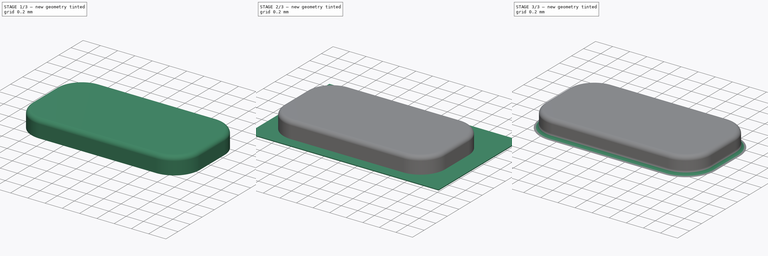
[diagram: build sequence overview — one tinted view per stage of 3, left to right]
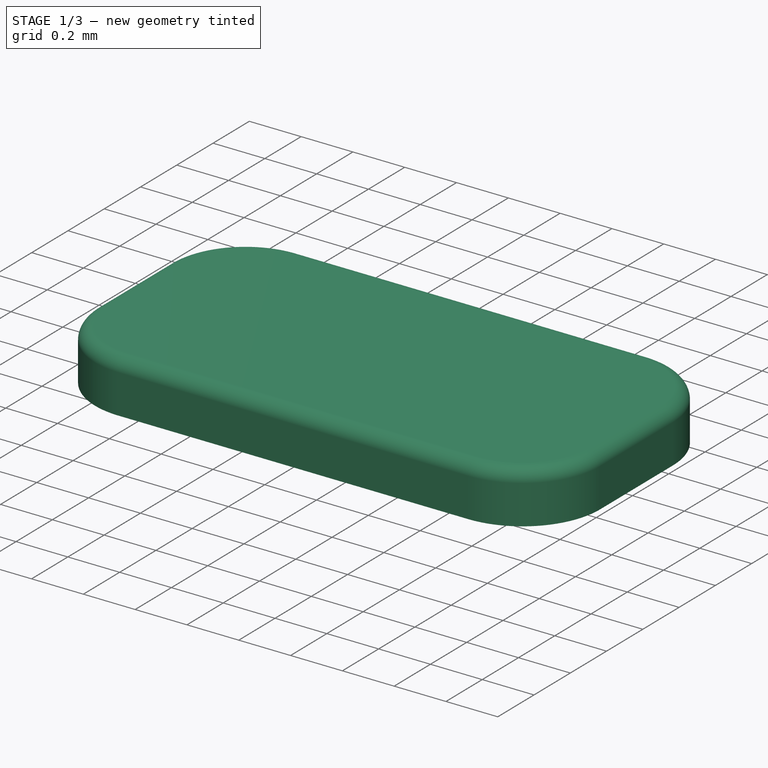
[diagram: stage 1 of 3 — iso view after this stage's code; geometry added in this stage tinted green]
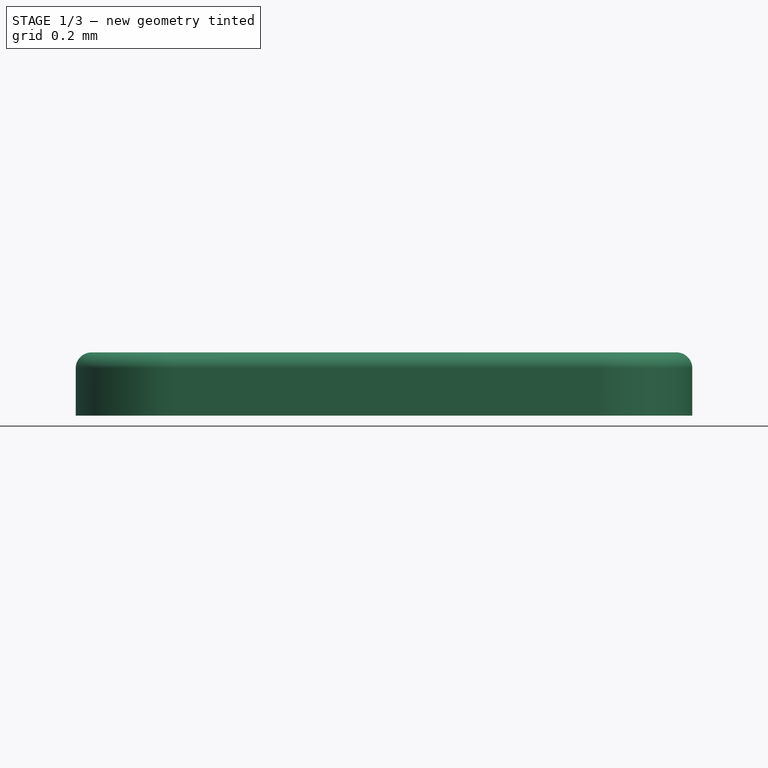
[diagram: stage 1 of 3 — front view after this stage's code; geometry added in this stage tinted green]
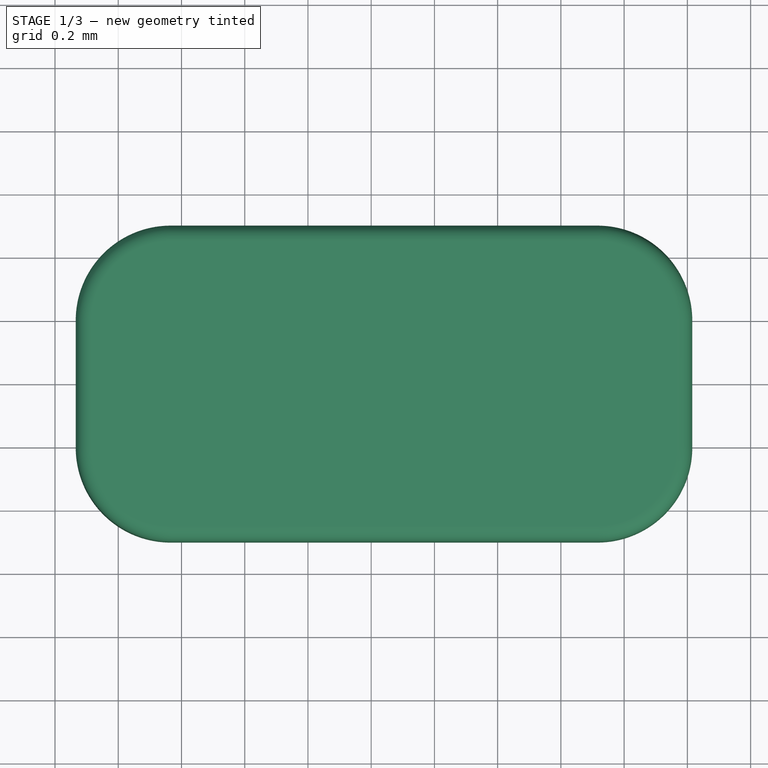
[diagram: stage 1 of 3 — top view after this stage's code; geometry added in this stage tinted green]
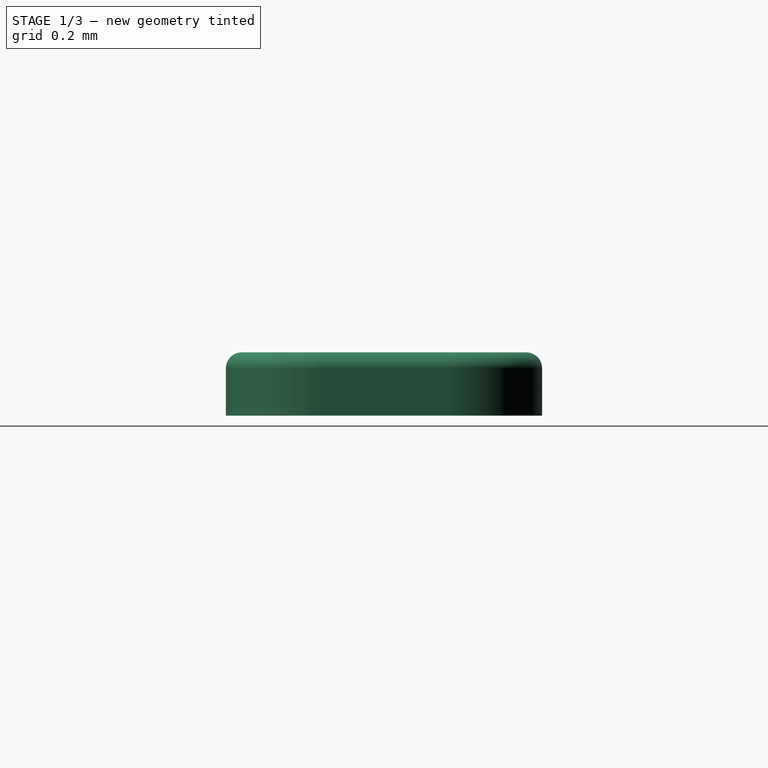
[diagram: stage 1 of 3 — right view after this stage's code; geometry added in this stage tinted green]
FCSTD DOCUMENT  (FreeCAD 0.17R12607 (Git))
Label: FC-12M Covercstd
License: CreativeCommons Attribution-ShareAlike
LicenseURL: http://creativecommons.org/licenses/by-sa/4.0/
objects: Sketcher::SketchObject×3, PartDesign::Pad×2, PartDesign::Fillet×2, PartDesign::Pocket×1, PartDesign::Body×1
note: 12 computed .brp shape members not serialized (recipe doc carries the construction recipe); baked Part::Feature solids carry a one-line shape summary decoded from their .brp

FEATURE [Sketcher::SketchObject] Sketch
  MapMode = 5
  Support = -> [XY_Plane]
  sketch-geometry (8):
    g0: ArcOfCircle CenterX=3.56552 CenterY=0.2 CenterZ=0 NormalX=0 NormalY=0 NormalZ=1 AngleXU=0 Radius=0.3 StartAngle=1.57079 EndAngle=3.14159
    g1: LineSegment StartX=3.56552 StartY=0.5 StartZ=0 EndX=4.91552 EndY=0.5 EndZ=0
    g2: ArcOfCircle CenterX=4.91552 CenterY=0.2 CenterZ=0 NormalX=0 NormalY=0 NormalZ=1 AngleXU=0 Radius=0.3 StartAngle=7.2494e-08 EndAngle=1.57081
    g3: LineSegment StartX=5.21552 StartY=0.2 StartZ=0 EndX=5.21552 EndY=-0.2 EndZ=0
    g4: ArcOfCircle CenterX=4.91552 CenterY=-0.2 CenterZ=0 NormalX=0 NormalY=0 NormalZ=1 AngleXU=0 Radius=0.3 StartAngle=4.71237 EndAngle=6.28319
    g5: LineSegment StartX=4.91552 StartY=-0.5 StartZ=0 EndX=3.56552 EndY=-0.5 EndZ=0
    g6: ArcOfCircle CenterX=3.56552 CenterY=-0.2 CenterZ=0 NormalX=0 NormalY=0 NormalZ=1 AngleXU=0 Radius=0.3 StartAngle=3.14159 EndAngle=4.71239
    g7: LineSegment StartX=3.26552 StartY=-0.2 StartZ=0 EndX=3.26552 EndY=0.2 EndZ=0
  constraints (27):
    c: Coincident(g1,g0)
    c: Horizontal(g1)
    c: Coincident(g2,g1)
    c: Coincident(g3,g2)
    c: Vertical(g3)
    c: Coincident(g4,g3)
    c: Coincident(g5,g4)
    c: Horizontal(g5)
    c: Coincident(g6,g5)
    c: Coincident(g7,g6)
    c: Coincident(g7,g0)
    c: Vertical(g7)
    c: Equal(g1,g5)
    c: Equal(g3,g7)
    c: Equal(g0,g2)
    c: Equal(g6,g4)
    c: Equal(g0,g6)
    c: Tangent(g0,g1)
    c: Tangent(g7,g0)
    c: Tangent(g1,g2)
    c: Tangent(g3,g2)
    c: Tangent(g3,g4)
    c: Tangent(g5,g6)
    c: Symmetric(g0,g5,g-1)
    c: Radius(g2) = 0.3
    c: Distance(g1,g4) = 1
    c: DistanceX(g1,g1) = 1.35
FEATURE [PartDesign::Pad] Pad
  Length = 0.2
  Length2 = 100
  Profile = -> Sketch
  Type = 0
FEATURE [PartDesign::Fillet] Fillet
  Base = -> Pad [Face10]
  BaseFeature = -> Pad
  Radius = 0.05
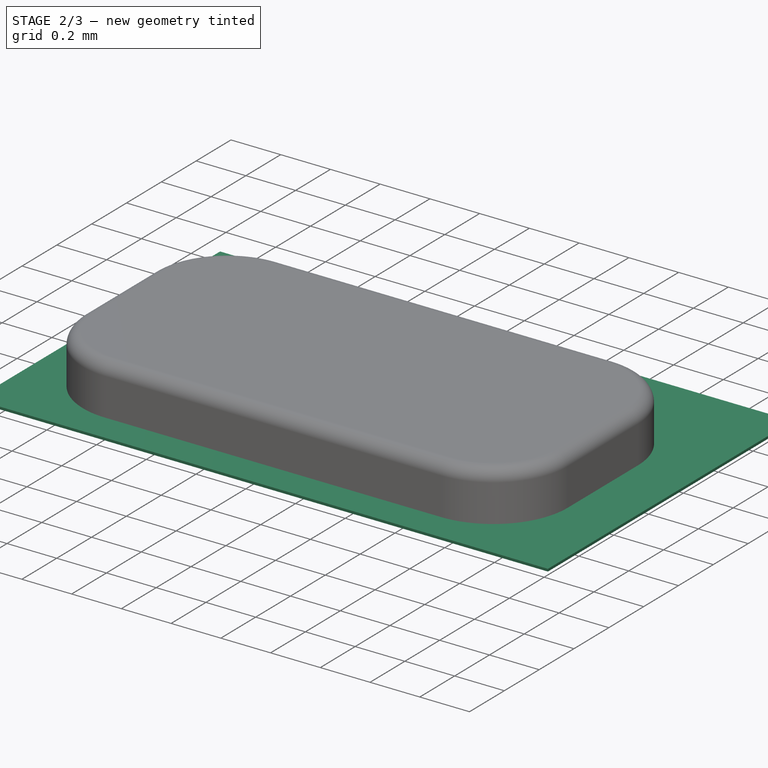
[diagram: stage 2 of 3 — iso view after this stage's code; geometry added in this stage tinted green]
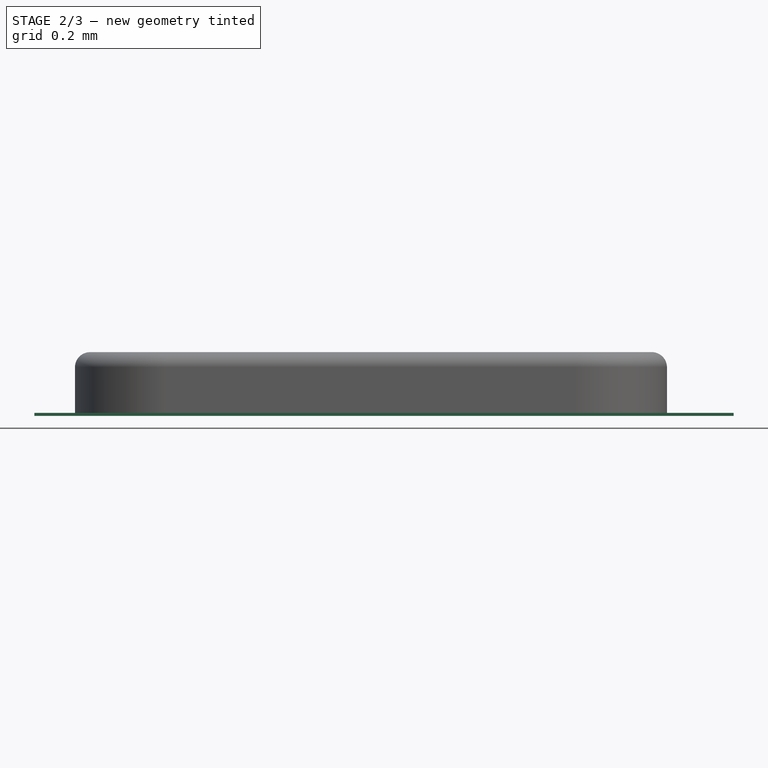
[diagram: stage 2 of 3 — front view after this stage's code; geometry added in this stage tinted green]
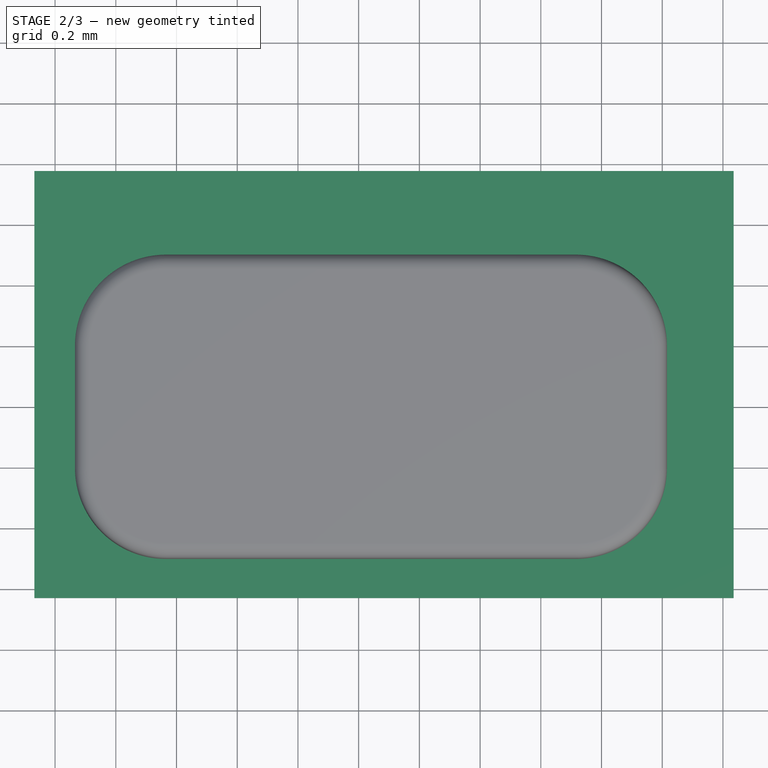
[diagram: stage 2 of 3 — top view after this stage's code; geometry added in this stage tinted green]
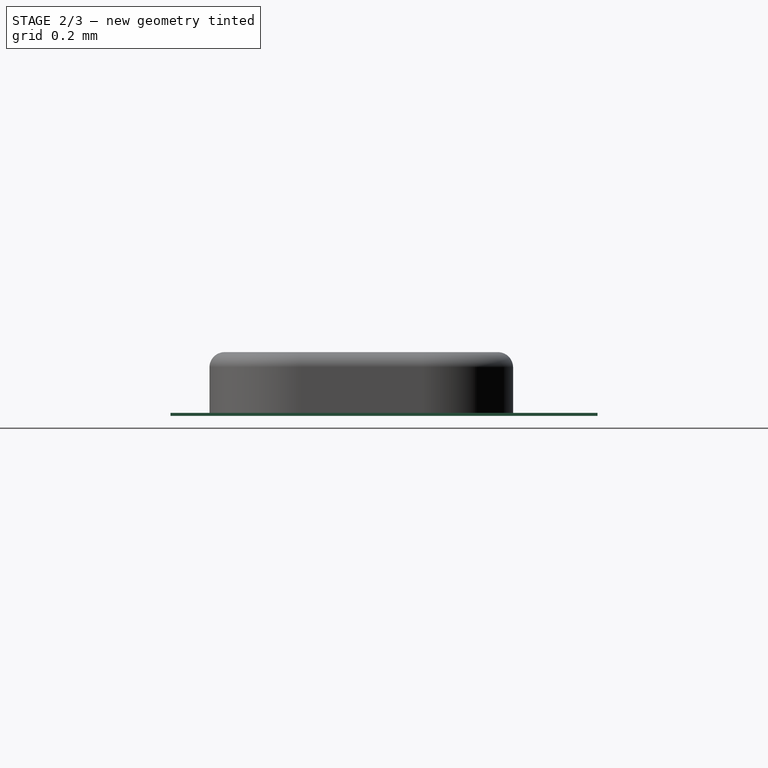
[diagram: stage 2 of 3 — right view after this stage's code; geometry added in this stage tinted green]
FEATURE [Sketcher::SketchObject] Sketch001
  MapMode = 5
  Placement = pos=(0,0,0) rot=(1,0,0;3.14159rad)
  Support = -> [Fillet]
  sketch-geometry (4):
    g0: LineSegment StartX=3.13171 StartY=0.628584 StartZ=0 EndX=5.43524 EndY=0.628584 EndZ=0
    g1: LineSegment StartX=5.43524 StartY=0.628584 StartZ=0 EndX=5.43524 EndY=-0.778291 EndZ=0
    g2: LineSegment StartX=5.43524 StartY=-0.778291 StartZ=0 EndX=3.13171 EndY=-0.778291 EndZ=0
    g3: LineSegment StartX=3.13171 StartY=-0.778291 StartZ=0 EndX=3.13171 EndY=0.628584 EndZ=0
  constraints (8):
    c: Coincident(g0,g1)
    c: Coincident(g1,g2)
    c: Coincident(g2,g3)
    c: Coincident(g3,g0)
    c: Horizontal(g0)
    c: Horizontal(g2)
    c: Vertical(g1)
    c: Vertical(g3)
FEATURE [PartDesign::Pad] Pad001
  BaseFeature = -> Fillet
  Length = 0.01
  Length2 = 100
  Profile = -> Sketch001
  Type = 0
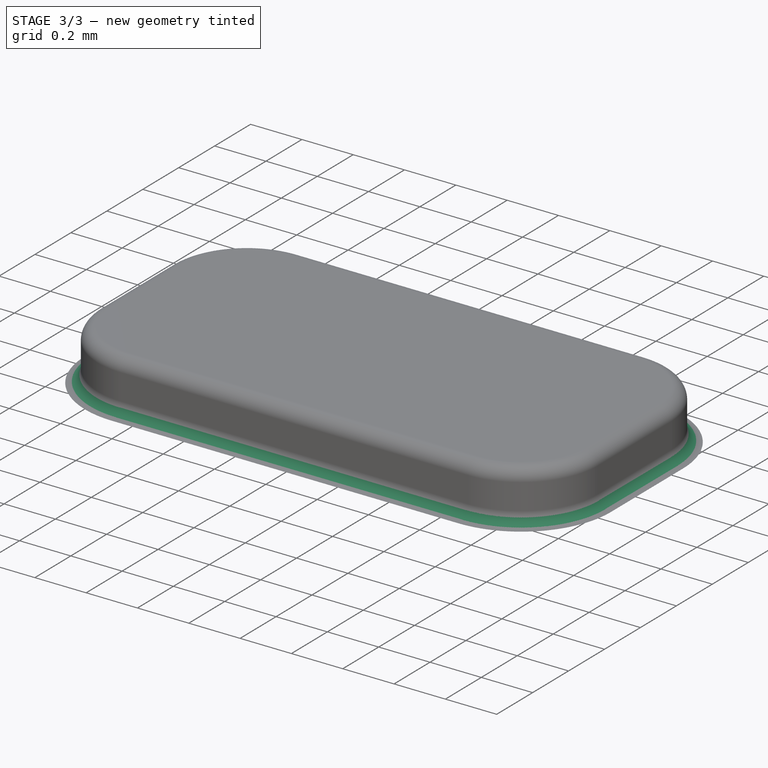
[diagram: stage 3 of 3 — iso view after this stage's code; geometry added in this stage tinted green]
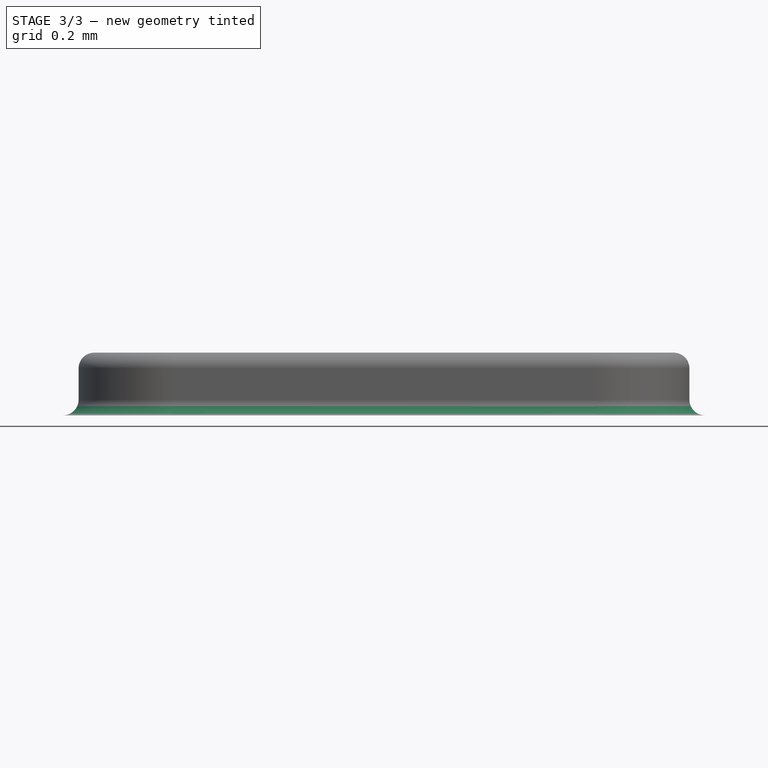
[diagram: stage 3 of 3 — front view after this stage's code; geometry added in this stage tinted green]
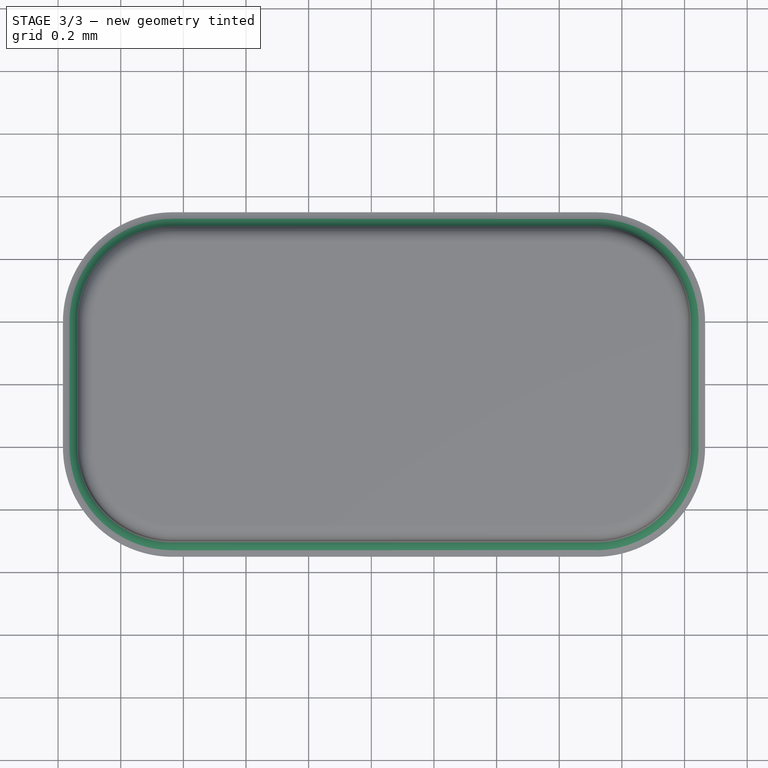
[diagram: stage 3 of 3 — top view after this stage's code; geometry added in this stage tinted green]
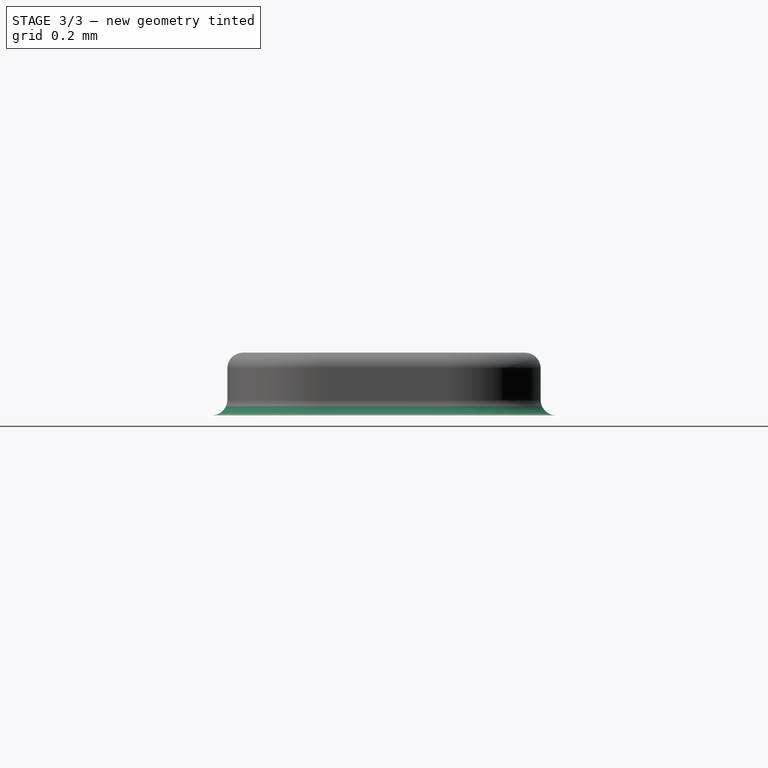
[diagram: stage 3 of 3 — right view after this stage's code; geometry added in this stage tinted green]
FEATURE [PartDesign::Fillet] Fillet001
  Base = -> Pad001 [Edge21]
  BaseFeature = -> Pad001
  Radius = 0.05
FEATURE [Sketcher::SketchObject] Sketch002
  ExternalGeometry = -> [Fillet001]
  MapMode = 5
  Placement = pos=(0,0,-0.01) rot=(1,0,0;3.14159rad)
  Support = -> [Fillet001]
  sketch-geometry (4):
    g0: LineSegment StartX=3.13171 StartY=0.628584 StartZ=0 EndX=5.43524 EndY=0.628584 EndZ=0
    g1: LineSegment StartX=5.43524 StartY=0.628584 StartZ=0 EndX=5.43524 EndY=-0.778291 EndZ=0
    g2: LineSegment StartX=5.43524 StartY=-0.778291 StartZ=0 EndX=3.13171 EndY=-0.778291 EndZ=0
    g3: LineSegment StartX=3.13171 StartY=-0.778291 StartZ=0 EndX=3.13171 EndY=0.628584 EndZ=0
  constraints (10):
    c: Coincident(g0,g1)
    c: Coincident(g1,g2)
    c: Coincident(g2,g3)
    c: Coincident(g3,g0)
    c: Horizontal(g0)
    c: Horizontal(g2)
    c: Vertical(g1)
    c: Vertical(g3)
    c: Coincident(g0,g-3)
    c: Coincident(g1,g-4)
FEATURE [PartDesign::Pocket] Pocket
  BaseFeature = -> Fillet001
  Length = 0.01
  Profile = -> Sketch002
  Type = 0
FEATURE [PartDesign::Body] Body
  Group = -> [Sketch,Pad,Fillet,Sketch001,Pad001,Fillet001,Sketch002,Pocket]
  Origin = -> Origin
  Tip = -> Pocket
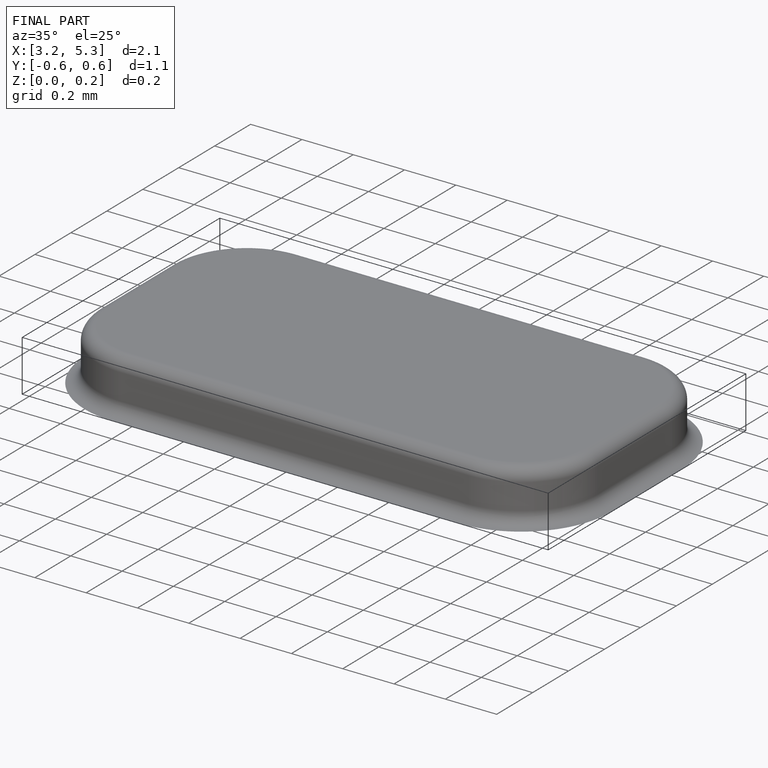
[diagram: finished part — iso view with bounding-box wireframe]
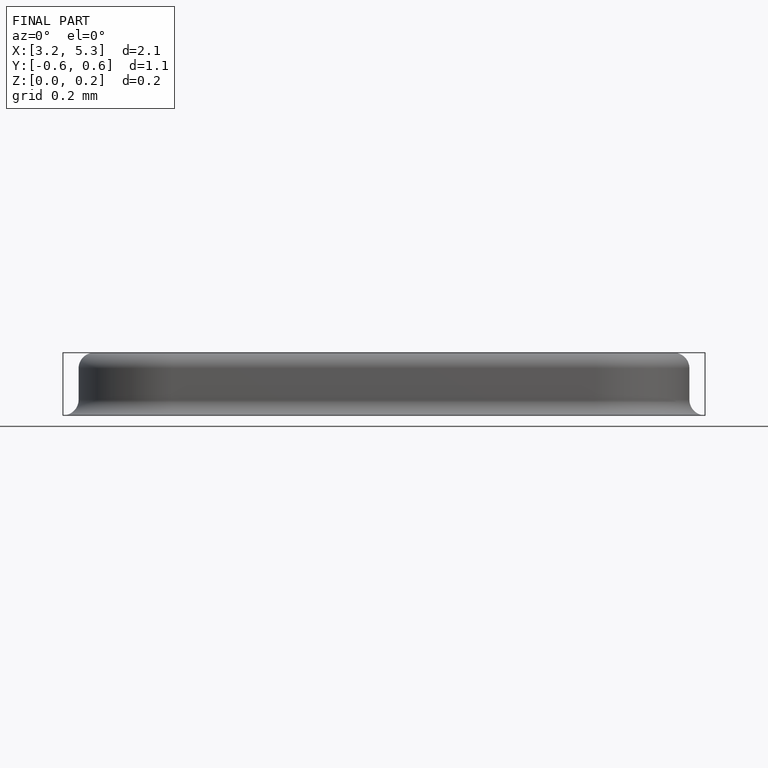
[diagram: finished part — front view with bounding-box wireframe]
